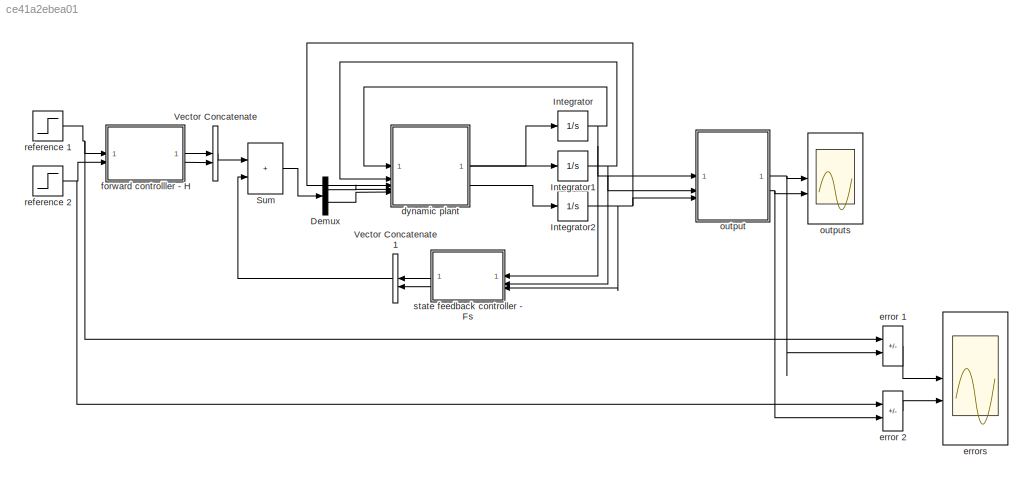
MODEL slx_ce41a2ebea01
KIND model
CONFIG AbsTol = auto
CONFIG EnableMultiTasking = off
CONFIG FixedStep = auto
CONFIG MaxStep = auto
CONFIG MinStep = auto
CONFIG RelTol = 1e-3
CONFIG SampleTimeConstraint = Unconstrained
CONFIG SolverName = VariableStepAuto
CONFIG StartTime = 0.0
CONFIG StopTime = 10.0
BLOCK [Demux] Demux
  Outputs = 2
BLOCK [Integrator] Integrator
BLOCK [Integrator] Integrator1
BLOCK [Integrator] Integrator2
BLOCK [Sum] Sum
  IconShape = rectangular
BLOCK [Concatenate] Vector Concatenate
BLOCK [Concatenate] Vector Concatenate1
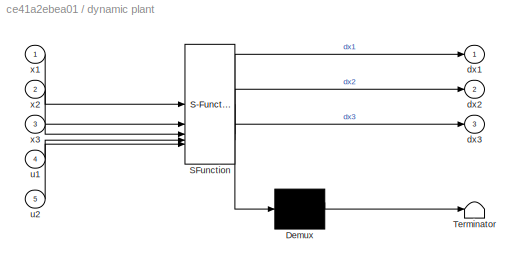
BLOCK [SubSystem] dynamic plant
  ErrorFcn = Stateflow.Translate.translate
  PermitHierarchicalResolution = ExplicitOnly
  SFBlockType = MATLAB Function
  TreatAsAtomicUnit = on
BLOCK [Demux] dynamic plant/ Demux 
  Outputs = 1
BLOCK [S-Function] dynamic plant/ SFunction 
  EnableBusSupport = on
  FunctionName = sf_sfun
  PortCounts = [5 4]
  SFcnIsStateOwnerBlock = off
  SFunctionDeploymentMode = off
  Tag = Stateflow S-Function 2
BLOCK [Terminator] dynamic plant/ Terminator 
BLOCK [Outport] dynamic plant/dx1
  VectorParamsAs1DForOutWhenUnconnected = off
BLOCK [Outport] dynamic plant/dx2
  Port = 2
  VectorParamsAs1DForOutWhenUnconnected = off
BLOCK [Outport] dynamic plant/dx3
  Port = 3
  VectorParamsAs1DForOutWhenUnconnected = off
BLOCK [Inport] dynamic plant/u1
  Port = 4
BLOCK [Inport] dynamic plant/u2
  Port = 5
BLOCK [Inport] dynamic plant/x1
BLOCK [Inport] dynamic plant/x2
  Port = 2
BLOCK [Inport] dynamic plant/x3
  Port = 3
BLOCK [Sum] error 1
  IconShape = rectangular
  Inputs = +-
BLOCK [Sum] error 2
  IconShape = rectangular
  Inputs = +-
BLOCK [Scope] errors
  Floating = off
  NumInputPorts = 2
  ScopeSpecificationString = Simulink.scopes.TimeScopeBlockCfg('CurrentConfiguration', extmgr.ConfigurationSet(extmgr.Configuration('Core','General UI',true),extmgr.Configuration('Core','Source UI',true),extmgr.Configuration('Sources','WiredSimulink',true,'DataLoggingVariableName','ScopeData1'),extmgr.Configuration('Visuals','Time Domain',true,'SerializedDisplays',{struct('MinYLimReal','-0.25','MaxYLimReal','2.25','YLabelReal...<+1385ch>
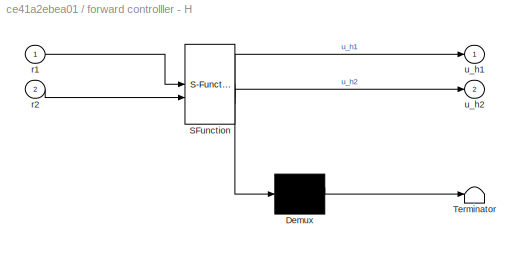
BLOCK [SubSystem] forward controlller - H
  ErrorFcn = Stateflow.Translate.translate
  PermitHierarchicalResolution = ExplicitOnly
  SFBlockType = MATLAB Function
  TreatAsAtomicUnit = on
BLOCK [Demux] forward controlller - H/ Demux 
  Outputs = 1
BLOCK [S-Function] forward controlller - H/ SFunction 
  EnableBusSupport = on
  FunctionName = sf_sfun
  PortCounts = [2 3]
  SFcnIsStateOwnerBlock = off
  SFunctionDeploymentMode = off
  Tag = Stateflow S-Function 5
BLOCK [Terminator] forward controlller - H/ Terminator 
BLOCK [Inport] forward controlller - H/r1
BLOCK [Inport] forward controlller - H/r2
  Port = 2
BLOCK [Outport] forward controlller - H/u_h1
  VectorParamsAs1DForOutWhenUnconnected = off
BLOCK [Outport] forward controlller - H/u_h2
  Port = 2
  VectorParamsAs1DForOutWhenUnconnected = off
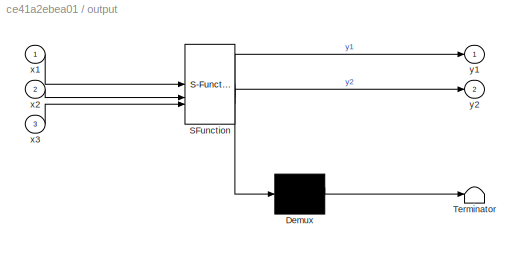
BLOCK [SubSystem] output
  ErrorFcn = Stateflow.Translate.translate
  PermitHierarchicalResolution = ExplicitOnly
  SFBlockType = MATLAB Function
  TreatAsAtomicUnit = on
BLOCK [Demux] output/ Demux 
  Outputs = 1
BLOCK [S-Function] output/ SFunction 
  EnableBusSupport = on
  FunctionName = sf_sfun
  PortCounts = [3 3]
  SFcnIsStateOwnerBlock = off
  SFunctionDeploymentMode = off
  Tag = Stateflow S-Function 4
BLOCK [Terminator] output/ Terminator 
BLOCK [Inport] output/x1
BLOCK [Inport] output/x2
  Port = 2
BLOCK [Inport] output/x3
  Port = 3
BLOCK [Outport] output/y1
  VectorParamsAs1DForOutWhenUnconnected = off
BLOCK [Outport] output/y2
  Port = 2
  VectorParamsAs1DForOutWhenUnconnected = off
BLOCK [Scope] outputs
  Floating = off
  NumInputPorts = 2
  ScopeSpecificationString = Simulink.scopes.TimeScopeBlockCfg('CurrentConfiguration', extmgr.ConfigurationSet(extmgr.Configuration('Core','General UI',true),extmgr.Configuration('Core','Source UI',true),extmgr.Configuration('Sources','WiredSimulink',true),extmgr.Configuration('Visuals','Time Domain',true,'SerializedDisplays',{struct('MinYLimReal','-0.25','MaxYLimReal','2.25','YLabelReal','','MinYLimMag','0.00000','MaxYLimMag...<+1350ch>
BLOCK [Step] reference 1
  SampleTime = 0
BLOCK [Step] reference 2
  SampleTime = 0
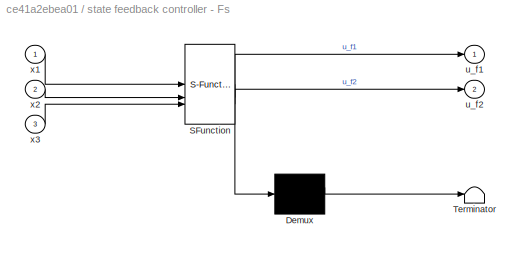
BLOCK [SubSystem] state feedback controller - Fs
  ErrorFcn = Stateflow.Translate.translate
  PermitHierarchicalResolution = ExplicitOnly
  SFBlockType = MATLAB Function
  TreatAsAtomicUnit = on
BLOCK [Demux] state feedback controller - Fs/ Demux 
  Outputs = 1
BLOCK [S-Function] state feedback controller - Fs/ SFunction 
  EnableBusSupport = on
  FunctionName = sf_sfun
  PortCounts = [3 3]
  SFcnIsStateOwnerBlock = off
  SFunctionDeploymentMode = off
  Tag = Stateflow S-Function 1
BLOCK [Terminator] state feedback controller - Fs/ Terminator 
BLOCK [Outport] state feedback controller - Fs/u_f1
  VectorParamsAs1DForOutWhenUnconnected = off
BLOCK [Outport] state feedback controller - Fs/u_f2
  Port = 2
  VectorParamsAs1DForOutWhenUnconnected = off
BLOCK [Inport] state feedback controller - Fs/x1
BLOCK [Inport] state feedback controller - Fs/x2
  Port = 2
BLOCK [Inport] state feedback controller - Fs/x3
  Port = 3
LINE Demux:1 -> dynamic plant:4
LINE Demux:2 -> dynamic plant:5
NET Integrator1:1 -> dynamic plant:2, output:2, state feedback controller - Fs:2
NET Integrator2:1 -> dynamic plant:3, output:3, state feedback controller - Fs:3
NET Integrator:1 -> dynamic plant:1, output:1, state feedback controller - Fs:1
LINE Sum:1 -> Demux:1
LINE Vector Concatenate1:1 -> Sum:2
LINE Vector Concatenate:1 -> Sum:1
LINE dynamic plant:1 -> Integrator:1
LINE dynamic plant:2 -> Integrator1:1
LINE dynamic plant:3 -> Integrator2:1
LINE error 1:1 -> errors:1
LINE error 2:1 -> errors:2
LINE forward controlller - H:1 -> Vector Concatenate:1
LINE forward controlller - H:2 -> Vector Concatenate:2
NET output:1 -> error 1:2, outputs:1
NET output:2 -> error 2:2, outputs:2
NET reference 1:1 -> error 1:1, forward controlller - H:1
NET reference 2:1 -> error 2:1, forward controlller - H:2
LINE state feedback controller - Fs:1 -> Vector Concatenate1:1
LINE state feedback controller - Fs:2 -> Vector Concatenate1:2
note: NET lines group one-source signal fan-out (src -> all destinations, sorted); 1:1 wires keep LINE
CHART state feedback controller - Fs states=1 transitions=1
  STATE_LABEL 'eML_blk_kernel()'
  STATE_LABEL "SCRIPT:\nfunction [u_f1,u_f2] = fcn(x1,x2,x3)\nF_s=[-1,0,2.5;-1,-1,-2.5];\nX=[x1,x2,x3]';\nu_f = F_s*X;\nu_f1=u_f(1,1);\nu_f2=u_f(2,1);\n"
CHART dynamic plant states=1 transitions=1
  STATE_LABEL 'eML_blk_kernel()'
  STATE_LABEL "SCRIPT:\nfunction [dx1,dx2,dx3] = fcn(x1,x2,x3,u1,u2)\nX=[x1,x2,x3]';\nU=[u1,u2]';\nA=[1,1,0;0,-2,0;0,1,3];\nB=[1,1;-1,1;-1,1];\ndx=A*X+B*U;\ndx1=dx(1,1);\ndx2=dx(2,1);\ndx3 = dx(3,1);\n"
CHART output states=1 transitions=1
  STATE_LABEL 'eML_blk_kernel()'
  STATE_LABEL "SCRIPT:\nfunction [y1,y2] = fcn(x1,x2,x3)\nX=[x1,x2,x3]';\nC=[1,0,0;0,0,1];\nY=C*X;\ny1=Y(1,1);\ny2=Y(2,1);\n"
CHART forward controlller - H states=1 transitions=1
  STATE_LABEL 'eML_blk_kernel()'
  STATE_LABEL "SCRIPT:\nfunction [u_h1,u_h2] = fcn(r1,r2)\nH=[1/2,-2/2;1/2,2/2];\nR=[r1,r2];\nu_h=H*R';\nu_h1=u_h(1,1);\nu_h2=u_h(2,1);\n"
CHART  states=0 transitions=0
CHART  states=0 transitions=0
CHART  states=0 transitions=0
CHART  states=0 transitions=0
